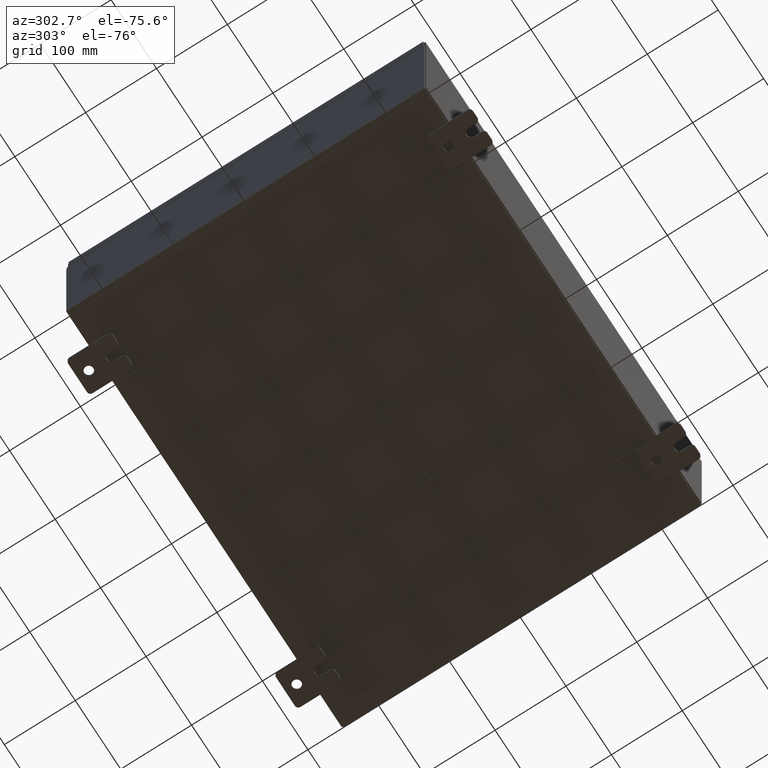
[diagram: clean part render]
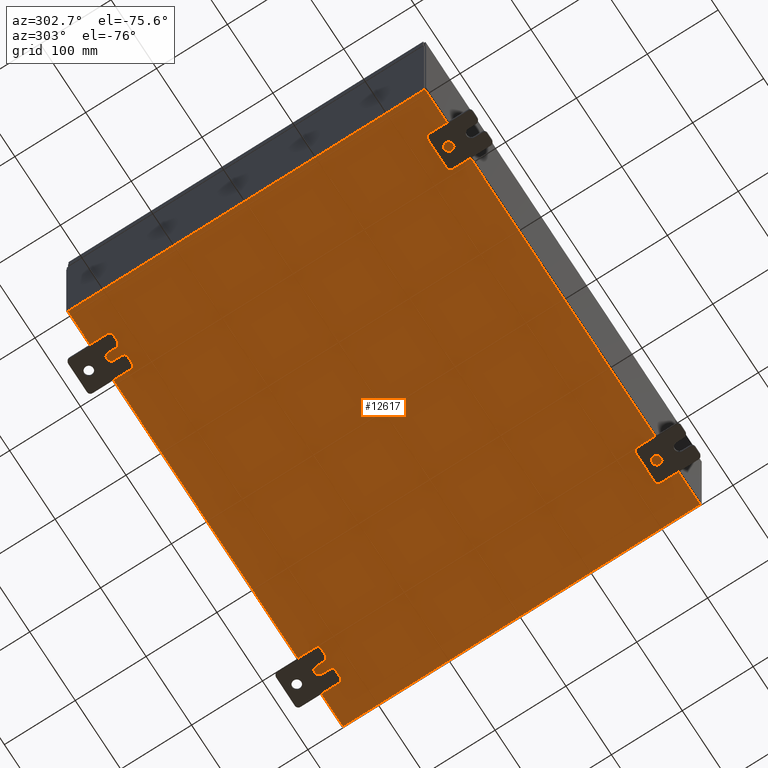
[diagram: same view with one face highlighted and labeled with its STEP entity id]
A machine part, auxiliary view. The second image highlights one B-rep face of the part: STEP entity #12617.
In plain terms, the highlighted planar face has unit normal (0, 0, -1).
Its self-contained STEP definition (entity closure, byte-faithful):
#1507 = AXIS2_PLACEMENT_3D ( 'NONE', #35910, #6584, #40827 ) ;
#3645 = VERTEX_POINT ( 'NONE', #4951 ) ;
#4951 = CARTESIAN_POINT ( 'NONE',  ( -11.91230000000000400, 9.925300000000000000, -0.07470000000000000300 ) ) ;
#6584 = DIRECTION ( 'NONE',  ( 0.0000000000000000000, 0.0000000000000000000, -1.000000000000000000 ) ) ;
#9671 = VERTEX_POINT ( 'NONE', #43560 ) ;
#12617 = ADVANCED_FACE ( 'NONE', ( #14712 ), #30988, .T. ) ;
#12622 = VECTOR ( 'NONE', #13721, 39.37007874015748100 ) ;
#13583 = EDGE_CURVE ( 'NONE', #25667, #3645, #40731, .T. ) ;
#13721 = DIRECTION ( 'NONE',  ( 1.000000000000000000, 0.0000000000000000000, 0.0000000000000000000 ) ) ;
#14227 = CARTESIAN_POINT ( 'NONE',  ( 11.91229999999999800, 9.925299999999996500, -0.07469999999999994700 ) ) ;
#14712 = FACE_OUTER_BOUND ( 'NONE', #21612, .T. ) ;
#16232 = VECTOR ( 'NONE', #62552, 39.37007874015748100 ) ;
#17244 = VECTOR ( 'NONE', #19928, 39.37007874015748100 ) ;
#19825 = ORIENTED_EDGE ( 'NONE', *, *, #32296, .T. ) ;
#19928 = DIRECTION ( 'NONE',  ( -0.0000000000000000000, -1.000000000000000000, -0.0000000000000000000 ) ) ;
#20978 = EDGE_CURVE ( 'NONE', #25667, #44389, #33307, .T. ) ;
#21612 = EDGE_LOOP ( 'NONE', ( #58904, #19825, #35399, #37977 ) ) ;
#22607 = LINE ( 'NONE', #62962, #12622 ) ;
#25667 = VERTEX_POINT ( 'NONE', #14227 ) ;
#30988 = PLANE ( 'NONE',  #1507 ) ;
#31649 = CARTESIAN_POINT ( 'NONE',  ( 11.91229999999998900, -9.925300000000000000, -0.07470000000000000300 ) ) ;
#32296 = EDGE_CURVE ( 'NONE', #9671, #3645, #34238, .T. ) ;
#33061 = CARTESIAN_POINT ( 'NONE',  ( -11.91230000000000400, -9.925300000000000000, -0.07469999999999994700 ) ) ;
#33307 = LINE ( 'NONE', #34463, #17244 ) ;
#34238 = LINE ( 'NONE', #33061, #60317 ) ;
#34463 = CARTESIAN_POINT ( 'NONE',  ( 11.91229999999999800, 9.925300000000000000, -0.07469999999999994700 ) ) ;
#35399 = ORIENTED_EDGE ( 'NONE', *, *, #13583, .F. ) ;
#35910 = CARTESIAN_POINT ( 'NONE',  ( 0.0000000000000000000, 0.0000000000000000000, -0.07470000000000000300 ) ) ;
#37977 = ORIENTED_EDGE ( 'NONE', *, *, #20978, .T. ) ;
#40731 = LINE ( 'NONE', #62758, #16232 ) ;
#40827 = DIRECTION ( 'NONE',  ( -1.000000000000000000, 0.0000000000000000000, -0.0000000000000000000 ) ) ;
#43464 = EDGE_CURVE ( 'NONE', #9671, #44389, #22607, .T. ) ;
#43560 = CARTESIAN_POINT ( 'NONE',  ( -11.91230000000000400, -9.925300000000000000, -0.07469999999999994700 ) ) ;
#44389 = VERTEX_POINT ( 'NONE', #31649 ) ;
#47617 = DIRECTION ( 'NONE',  ( -0.0000000000000000000, 1.000000000000000000, -0.0000000000000000000 ) ) ;
#58904 = ORIENTED_EDGE ( 'NONE', *, *, #43464, .F. ) ;
#60317 = VECTOR ( 'NONE', #47617, 39.37007874015748100 ) ;
#62552 = DIRECTION ( 'NONE',  ( -1.000000000000000000, -0.0000000000000000000, -0.0000000000000000000 ) ) ;
#62758 = CARTESIAN_POINT ( 'NONE',  ( -12.00000000000000400, 9.925300000000000000, -0.07470000000000000300 ) ) ;
#62962 = CARTESIAN_POINT ( 'NONE',  ( -12.00000000000000400, -9.925300000000000000, -0.07470000000000000300 ) ) ;